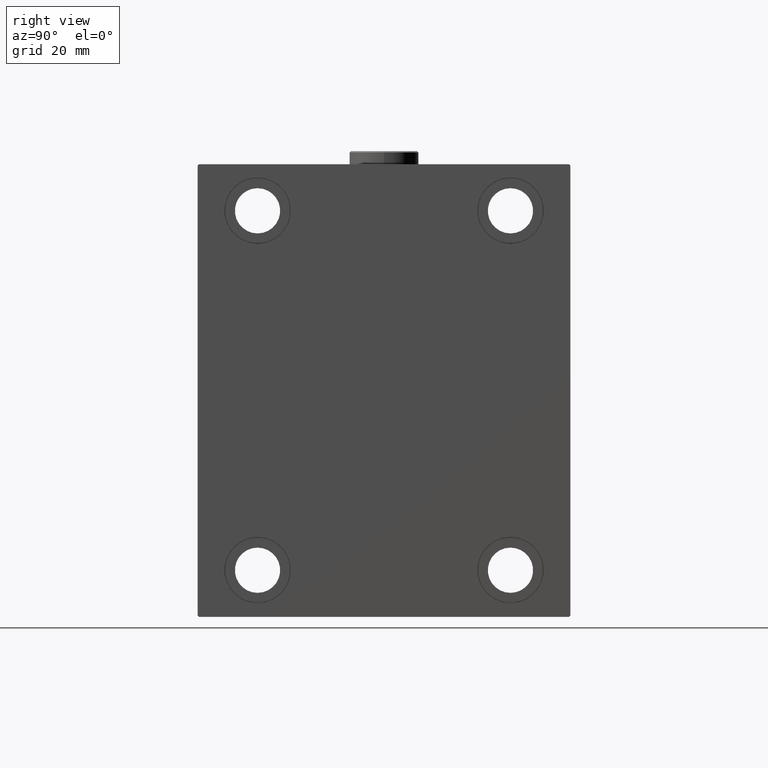
[diagram: clean part render]
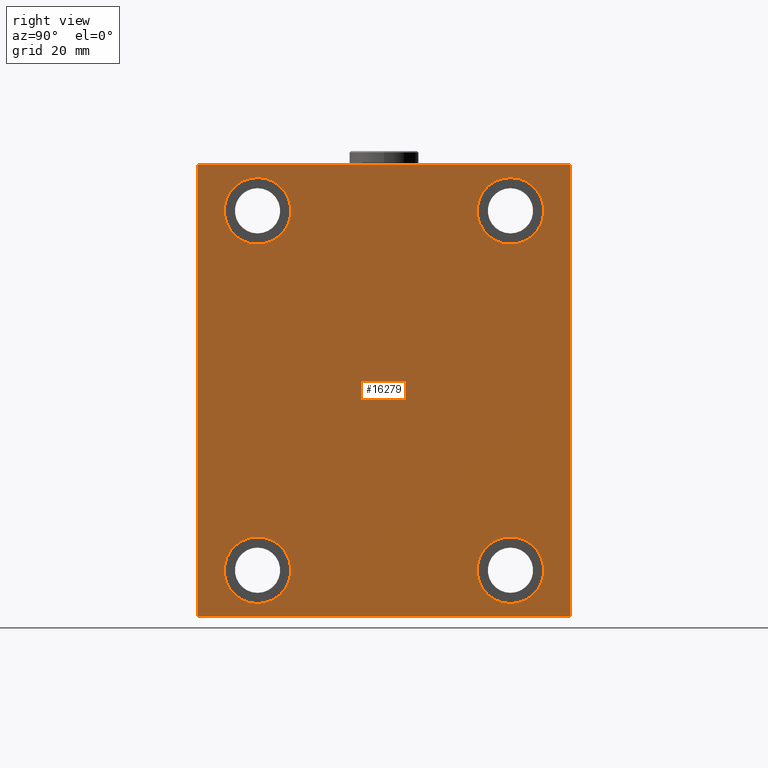
[diagram: same view with one face highlighted and labeled with its STEP entity id]
A machine part, right view. The second image highlights one B-rep face of the part: STEP entity #16279.
In plain terms, the highlighted planar face has unit normal (1, 0, 0).
Its self-contained STEP definition (entity closure, byte-faithful):
#643 = DIRECTION ( 'NONE',  ( 0.000000000000000000, 0.000000000000000000, 1.000000000000000000 ) ) ;
#1012 = DIRECTION ( 'NONE',  ( -0.000000000000000000, 0.7071067811865769936, 0.7071067811865181518 ) ) ;
#1089 = EDGE_CURVE ( 'NONE', #36846, #36700, #42572, .T. ) ;
#1521 = DIRECTION ( 'NONE',  ( 0.000000000000000000, 1.000000000000000000, 9.912705577010325549E-17 ) ) ;
#1528 = VERTEX_POINT ( 'NONE', #16063 ) ;
#1764 = LINE ( 'NONE', #40279, #6667 ) ;
#1925 = VERTEX_POINT ( 'NONE', #20990 ) ;
#2024 = ORIENTED_EDGE ( 'NONE', *, *, #14063, .T. ) ;
#2480 = FACE_BOUND ( 'NONE', #16500, .T. ) ;
#3011 = ORIENTED_EDGE ( 'NONE', *, *, #43613, .T. ) ;
#3329 = CIRCLE ( 'NONE', #28811, 12.50000000000001066 ) ;
#3601 = EDGE_CURVE ( 'NONE', #4708, #20131, #18382, .T. ) ;
#3708 = CARTESIAN_POINT ( 'NONE',  ( 145.0000000000000000, 77.24999999999907629, 77.25000000000122213 ) ) ;
#4045 = ORIENTED_EDGE ( 'NONE', *, *, #9461, .T. ) ;
#4072 = DIRECTION ( 'NONE',  ( 0.000000000000000000, 0.000000000000000000, -1.000000000000000000 ) ) ;
#4156 = DIRECTION ( 'NONE',  ( -0.000000000000000000, -0.7071067811865574537, 0.7071067811865376918 ) ) ;
#4708 = VERTEX_POINT ( 'NONE', #44503 ) ;
#4977 = DIRECTION ( 'NONE',  ( 1.000000000000000000, 0.000000000000000000, 0.000000000000000000 ) ) ;
#5012 = CARTESIAN_POINT ( 'NONE',  ( 145.0000000000000000, 69.50000000000001421, -85.00000000000001421 ) ) ;
#5980 = DIRECTION ( 'NONE',  ( -1.000000000000000000, -0.000000000000000000, -0.000000000000000000 ) ) ;
#6017 = CARTESIAN_POINT ( 'NONE',  ( 145.0000000000000000, -47.49999999999999289, -55.00000000000000711 ) ) ;
#6618 = DIRECTION ( 'NONE',  ( -1.000000000000000000, -0.000000000000000000, -0.000000000000000000 ) ) ;
#6667 = VECTOR ( 'NONE', #43233, 1000.000000000000000 ) ;
#7312 = CIRCLE ( 'NONE', #31331, 12.50000000000001066 ) ;
#7535 = CARTESIAN_POINT ( 'NONE',  ( 145.0000000000000000, -77.24999999999806732, 77.25000000000234479 ) ) ;
#7705 = CARTESIAN_POINT ( 'NONE',  ( 145.0000000000000000, -69.99999999999998579, 84.99999999999998579 ) ) ;
#8195 = AXIS2_PLACEMENT_3D ( 'NONE', #8495, #5980, #13040 ) ;
#8336 = AXIS2_PLACEMENT_3D ( 'NONE', #17945, #29115, #643 ) ;
#8400 = CARTESIAN_POINT ( 'NONE',  ( 145.0000000000000000, 0.000000000000000000, 0.000000000000000000 ) ) ;
#8495 = CARTESIAN_POINT ( 'NONE',  ( 145.0000000000000000, 47.50000000000000711, -67.50000000000000000 ) ) ;
#8571 = ORIENTED_EDGE ( 'NONE', *, *, #1089, .T. ) ;
#8709 = ORIENTED_EDGE ( 'NONE', *, *, #14899, .T. ) ;
#9057 = CIRCLE ( 'NONE', #8336, 12.49999999999999645 ) ;
#9237 = VERTEX_POINT ( 'NONE', #35013 ) ;
#9252 = EDGE_CURVE ( 'NONE', #13385, #31792, #7312, .T. ) ;
#9461 = EDGE_CURVE ( 'NONE', #42479, #36846, #24647, .T. ) ;
#9891 = DIRECTION ( 'NONE',  ( 0.000000000000000000, 0.000000000000000000, 1.000000000000000000 ) ) ;
#10014 = ORIENTED_EDGE ( 'NONE', *, *, #23731, .T. ) ;
#10029 = DIRECTION ( 'NONE',  ( -0.000000000000000000, 0.7071067811865376918, -0.7071067811865573427 ) ) ;
#10110 = DIRECTION ( 'NONE',  ( -1.000000000000000000, -0.000000000000000000, -0.000000000000000000 ) ) ;
#10755 = LINE ( 'NONE', #3708, #11533 ) ;
#10828 = EDGE_CURVE ( 'NONE', #12849, #32820, #35706, .T. ) ;
#11533 = VECTOR ( 'NONE', #4156, 999.9999999999998863 ) ;
#11584 = CARTESIAN_POINT ( 'NONE',  ( 145.0000000000000000, 70.00000000000001421, 85.00000000000000000 ) ) ;
#11656 = VERTEX_POINT ( 'NONE', #30751 ) ;
#11745 = ORIENTED_EDGE ( 'NONE', *, *, #33649, .T. ) ;
#11911 = EDGE_CURVE ( 'NONE', #20039, #11656, #1764, .T. ) ;
#12149 = CIRCLE ( 'NONE', #31815, 12.50000000000001066 ) ;
#12585 = VECTOR ( 'NONE', #28702, 1000.000000000000000 ) ;
#12849 = VERTEX_POINT ( 'NONE', #28176 ) ;
#13040 = DIRECTION ( 'NONE',  ( 0.000000000000000000, 0.000000000000000000, 1.000000000000000000 ) ) ;
#13385 = VERTEX_POINT ( 'NONE', #20540 ) ;
#13785 = ORIENTED_EDGE ( 'NONE', *, *, #34366, .T. ) ;
#14063 = EDGE_CURVE ( 'NONE', #32820, #20039, #35863, .T. ) ;
#14777 = LINE ( 'NONE', #11584, #12585 ) ;
#14899 = EDGE_CURVE ( 'NONE', #41802, #1925, #30755, .T. ) ;
#15307 = CARTESIAN_POINT ( 'NONE',  ( 145.0000000000000000, 47.50000000000000711, 80.00000000000001421 ) ) ;
#16063 = CARTESIAN_POINT ( 'NONE',  ( 145.0000000000000000, -47.49999999999997868, 80.00000000000001421 ) ) ;
#16189 = EDGE_CURVE ( 'NONE', #26428, #42479, #14777, .T. ) ;
#16279 = ADVANCED_FACE ( 'NONE', ( #43711, #19091, #29605, #2480, #22985 ), #22745, .T. ) ;
#16313 = DIRECTION ( 'NONE',  ( 0.000000000000000000, 0.000000000000000000, 1.000000000000000000 ) ) ;
#16500 = EDGE_LOOP ( 'NONE', ( #23435, #28724 ) ) ;
#16627 = CIRCLE ( 'NONE', #20974, 12.50000000000001066 ) ;
#17553 = DIRECTION ( 'NONE',  ( 0.000000000000000000, 0.000000000000000000, 1.000000000000000000 ) ) ;
#17777 = DIRECTION ( 'NONE',  ( -1.000000000000000000, -0.000000000000000000, -0.000000000000000000 ) ) ;
#17924 = ORIENTED_EDGE ( 'NONE', *, *, #10828, .T. ) ;
#17945 = CARTESIAN_POINT ( 'NONE',  ( 145.0000000000000000, -47.49999999999999289, -67.50000000000000000 ) ) ;
#18155 = CARTESIAN_POINT ( 'NONE',  ( 145.0000000000000000, -69.99999999999998579, -85.00000000000002842 ) ) ;
#18382 = CIRCLE ( 'NONE', #43865, 12.49999999999999645 ) ;
#18406 = AXIS2_PLACEMENT_3D ( 'NONE', #8400, #4977, #36657 ) ;
#18760 = CARTESIAN_POINT ( 'NONE',  ( 145.0000000000000000, 77.24999999999714362, -77.25000000000356692 ) ) ;
#18811 = ORIENTED_EDGE ( 'NONE', *, *, #9252, .T. ) ;
#19091 = FACE_BOUND ( 'NONE', #22918, .T. ) ;
#19264 = ORIENTED_EDGE ( 'NONE', *, *, #16189, .T. ) ;
#19268 = DIRECTION ( 'NONE',  ( -1.000000000000000000, -0.000000000000000000, -0.000000000000000000 ) ) ;
#20039 = VERTEX_POINT ( 'NONE', #31800 ) ;
#20131 = VERTEX_POINT ( 'NONE', #6017 ) ;
#20514 = DIRECTION ( 'NONE',  ( 0.000000000000000000, 0.000000000000000000, 1.000000000000000000 ) ) ;
#20540 = CARTESIAN_POINT ( 'NONE',  ( 145.0000000000000000, 47.50000000000000711, 55.00000000000000000 ) ) ;
#20974 = AXIS2_PLACEMENT_3D ( 'NONE', #37172, #36481, #43538 ) ;
#20990 = CARTESIAN_POINT ( 'NONE',  ( 145.0000000000000000, 47.50000000000000711, -80.00000000000000000 ) ) ;
#21325 = CARTESIAN_POINT ( 'NONE',  ( 145.0000000000000000, 47.50000000000000711, 67.50000000000000000 ) ) ;
#22745 = PLANE ( 'NONE',  #18406 ) ;
#22918 = EDGE_LOOP ( 'NONE', ( #44194, #13785 ) ) ;
#22985 = FACE_OUTER_BOUND ( 'NONE', #43784, .T. ) ;
#23152 = CARTESIAN_POINT ( 'NONE',  ( 145.0000000000000000, -47.49999999999999289, -67.50000000000000000 ) ) ;
#23435 = ORIENTED_EDGE ( 'NONE', *, *, #3601, .T. ) ;
#23641 = CIRCLE ( 'NONE', #41108, 12.49999999999999645 ) ;
#23731 = EDGE_CURVE ( 'NONE', #31792, #13385, #3329, .T. ) ;
#24411 = CARTESIAN_POINT ( 'NONE',  ( 145.0000000000000000, 47.50000000000000711, -67.50000000000000000 ) ) ;
#24435 = EDGE_LOOP ( 'NONE', ( #18811, #10014 ) ) ;
#24647 = LINE ( 'NONE', #7535, #24794 ) ;
#24757 = DIRECTION ( 'NONE',  ( 0.000000000000000000, 0.000000000000000000, 1.000000000000000000 ) ) ;
#24794 = VECTOR ( 'NONE', #31046, 1000.000000000000000 ) ;
#25576 = CARTESIAN_POINT ( 'NONE',  ( 145.0000000000000000, -69.99999999999998579, -84.50000000000004263 ) ) ;
#25681 = CARTESIAN_POINT ( 'NONE',  ( 145.0000000000000000, 47.50000000000000711, -55.00000000000000711 ) ) ;
#26428 = VERTEX_POINT ( 'NONE', #27258 ) ;
#26508 = ORIENTED_EDGE ( 'NONE', *, *, #35490, .T. ) ;
#26934 = ORIENTED_EDGE ( 'NONE', *, *, #11911, .T. ) ;
#27258 = CARTESIAN_POINT ( 'NONE',  ( 145.0000000000000000, 69.50000000000007105, 85.00000000000000000 ) ) ;
#28176 = CARTESIAN_POINT ( 'NONE',  ( 145.0000000000000000, -69.50000000000001421, -85.00000000000002842 ) ) ;
#28548 = CARTESIAN_POINT ( 'NONE',  ( 145.0000000000000000, -69.49999999999998579, 84.99999999999998579 ) ) ;
#28702 = DIRECTION ( 'NONE',  ( 0.000000000000000000, -1.000000000000000000, -9.912705577010325549E-17 ) ) ;
#28724 = ORIENTED_EDGE ( 'NONE', *, *, #42750, .T. ) ;
#28811 = AXIS2_PLACEMENT_3D ( 'NONE', #37858, #6618, #20514 ) ;
#29115 = DIRECTION ( 'NONE',  ( -1.000000000000000000, -0.000000000000000000, -0.000000000000000000 ) ) ;
#29605 = FACE_BOUND ( 'NONE', #24435, .T. ) ;
#29954 = VECTOR ( 'NONE', #1521, 1000.000000000000000 ) ;
#30751 = CARTESIAN_POINT ( 'NONE',  ( 145.0000000000000000, 70.00000000000001421, 84.50000000000007105 ) ) ;
#30755 = CIRCLE ( 'NONE', #8195, 12.49999999999999645 ) ;
#30966 = EDGE_CURVE ( 'NONE', #9237, #1528, #12149, .T. ) ;
#31046 = DIRECTION ( 'NONE',  ( 0.000000000000000000, -0.7071067811865671127, -0.7071067811865279218 ) ) ;
#31331 = AXIS2_PLACEMENT_3D ( 'NONE', #21325, #32043, #24757 ) ;
#31792 = VERTEX_POINT ( 'NONE', #15307 ) ;
#31800 = CARTESIAN_POINT ( 'NONE',  ( 145.0000000000000000, 70.00000000000002842, -84.50000000000004263 ) ) ;
#31815 = AXIS2_PLACEMENT_3D ( 'NONE', #44741, #10110, #9891 ) ;
#32043 = DIRECTION ( 'NONE',  ( -1.000000000000000000, -0.000000000000000000, -0.000000000000000000 ) ) ;
#32211 = VECTOR ( 'NONE', #1012, 1000.000000000000000 ) ;
#32820 = VERTEX_POINT ( 'NONE', #5012 ) ;
#33649 = EDGE_CURVE ( 'NONE', #36700, #12849, #41254, .T. ) ;
#34366 = EDGE_CURVE ( 'NONE', #1528, #9237, #16627, .T. ) ;
#35013 = CARTESIAN_POINT ( 'NONE',  ( 145.0000000000000000, -47.49999999999997868, 55.00000000000000000 ) ) ;
#35490 = EDGE_CURVE ( 'NONE', #11656, #26428, #10755, .T. ) ;
#35706 = LINE ( 'NONE', #18155, #29954 ) ;
#35863 = LINE ( 'NONE', #18760, #32211 ) ;
#36481 = DIRECTION ( 'NONE',  ( -1.000000000000000000, -0.000000000000000000, -0.000000000000000000 ) ) ;
#36657 = DIRECTION ( 'NONE',  ( 0.000000000000000000, 0.000000000000000000, -1.000000000000000000 ) ) ;
#36700 = VERTEX_POINT ( 'NONE', #25576 ) ;
#36846 = VERTEX_POINT ( 'NONE', #40833 ) ;
#37172 = CARTESIAN_POINT ( 'NONE',  ( 145.0000000000000000, -47.49999999999997868, 67.50000000000000000 ) ) ;
#37619 = CARTESIAN_POINT ( 'NONE',  ( 145.0000000000000000, -77.25000000000099476, -77.24999999999884892 ) ) ;
#37715 = VECTOR ( 'NONE', #10029, 1000.000000000000114 ) ;
#37858 = CARTESIAN_POINT ( 'NONE',  ( 145.0000000000000000, 47.50000000000000711, 67.50000000000000000 ) ) ;
#40279 = CARTESIAN_POINT ( 'NONE',  ( 145.0000000000000000, 70.00000000000002842, -85.00000000000001421 ) ) ;
#40298 = VECTOR ( 'NONE', #4072, 1000.000000000000000 ) ;
#40833 = CARTESIAN_POINT ( 'NONE',  ( 145.0000000000000000, -69.99999999999998579, 84.50000000000001421 ) ) ;
#41108 = AXIS2_PLACEMENT_3D ( 'NONE', #24411, #17777, #17553 ) ;
#41254 = LINE ( 'NONE', #37619, #37715 ) ;
#41802 = VERTEX_POINT ( 'NONE', #25681 ) ;
#42479 = VERTEX_POINT ( 'NONE', #28548 ) ;
#42572 = LINE ( 'NONE', #7705, #40298 ) ;
#42750 = EDGE_CURVE ( 'NONE', #20131, #4708, #9057, .T. ) ;
#43233 = DIRECTION ( 'NONE',  ( 0.000000000000000000, -8.163404592832031500E-17, 1.000000000000000000 ) ) ;
#43538 = DIRECTION ( 'NONE',  ( 0.000000000000000000, 0.000000000000000000, 1.000000000000000000 ) ) ;
#43613 = EDGE_CURVE ( 'NONE', #1925, #41802, #23641, .T. ) ;
#43711 = FACE_BOUND ( 'NONE', #44755, .T. ) ;
#43784 = EDGE_LOOP ( 'NONE', ( #19264, #4045, #8571, #11745, #17924, #2024, #26934, #26508 ) ) ;
#43865 = AXIS2_PLACEMENT_3D ( 'NONE', #23152, #19268, #16313 ) ;
#44194 = ORIENTED_EDGE ( 'NONE', *, *, #30966, .T. ) ;
#44503 = CARTESIAN_POINT ( 'NONE',  ( 145.0000000000000000, -47.49999999999999289, -80.00000000000000000 ) ) ;
#44741 = CARTESIAN_POINT ( 'NONE',  ( 145.0000000000000000, -47.49999999999997868, 67.50000000000000000 ) ) ;
#44755 = EDGE_LOOP ( 'NONE', ( #3011, #8709 ) ) ;